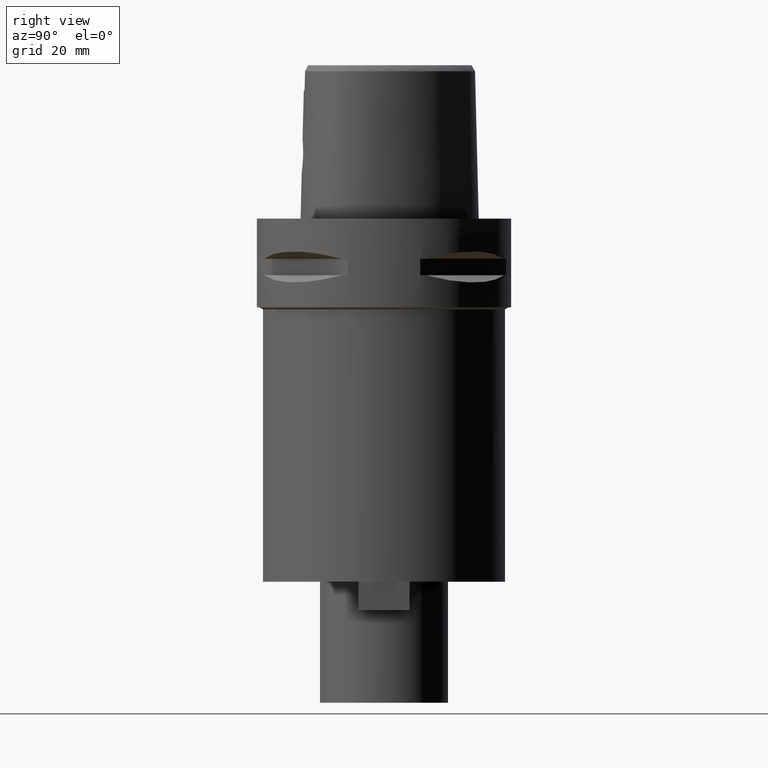
[diagram: clean part render]
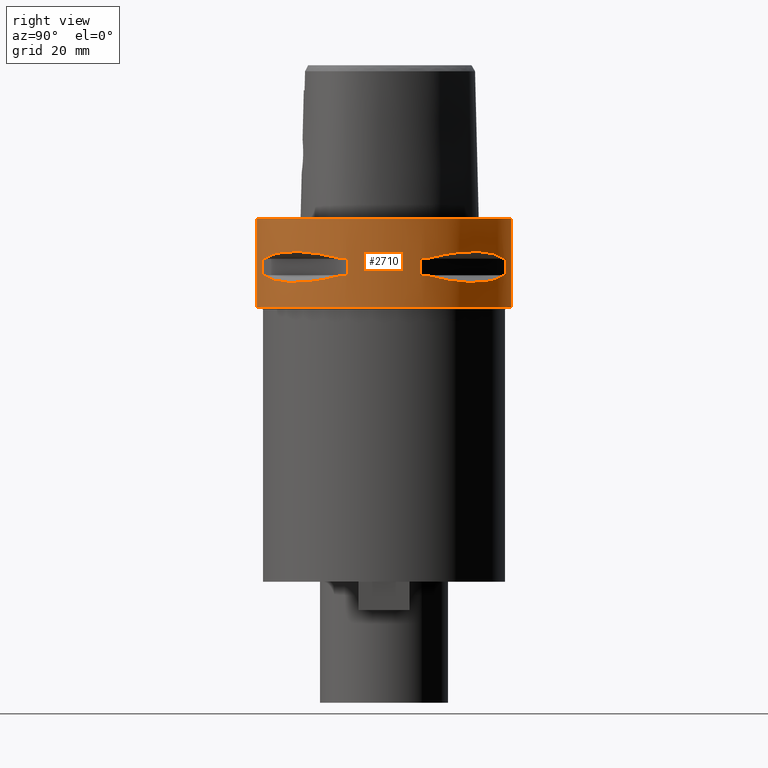
[diagram: same view with one face highlighted and labeled with its STEP entity id]
A machine part, right view. The second image highlights one B-rep face of the part: STEP entity #2710.
In plain terms, the highlighted cylindrical surface (partial cylindrical patch) has radius 31.5 mm, axis along (0, 0, -1).
Its self-contained STEP definition (entity closure, byte-faithful):
#292=CARTESIAN_POINT('',(0.E0,1.298125607096E-14,0.E0));
#293=DIRECTION('',(0.E0,0.E0,-1.E0));
#294=DIRECTION('',(0.E0,1.E0,0.E0));
#295=AXIS2_PLACEMENT_3D('',#292,#293,#294);
#384=DIRECTION('',(0.E0,0.E0,-1.E0));
#385=VECTOR('',#384,2.2E1);
#386=CARTESIAN_POINT('',(0.E0,-3.15E1,0.E0));
#387=LINE('',#386,#385);
#463=DIRECTION('',(0.E0,0.E0,-1.E0));
#464=VECTOR('',#463,2.2E1);
#465=CARTESIAN_POINT('',(0.E0,3.15E1,0.E0));
#466=LINE('',#465,#464);
#470=CARTESIAN_POINT('',(2.971690375018E1,-1.044775724750E1,-9.949999999999E0));
#471=CARTESIAN_POINT('',(2.888151197365E1,-1.282388988809E1,-9.320995176198E0));
#472=CARTESIAN_POINT('',(2.674739463903E1,-1.711282138769E1,-8.441295977074E0));
#473=CARTESIAN_POINT('',(2.244574140438E1,-2.244574140438E1,-8.020283076294E0));
#474=CARTESIAN_POINT('',(1.711282138769E1,-2.674739463903E1,-8.441295977074E0));
#475=CARTESIAN_POINT('',(1.282388988809E1,-2.888151197365E1,-9.320995176198E0));
#476=CARTESIAN_POINT('',(1.044775724750E1,-2.971690375018E1,-9.949999999999E0));
#481=DIRECTION('',(0.E0,0.E0,-1.E0));
#482=VECTOR('',#481,4.1E0);
#483=CARTESIAN_POINT('',(8.981198972018E0,-3.019251670572E1,-9.95E0));
#484=LINE('',#483,#482);
#488=CARTESIAN_POINT('',(1.044775724750E1,-2.971690375018E1,-1.405E1));
#489=CARTESIAN_POINT('',(1.282388988809E1,-2.888151197365E1,-1.467900482380E1));
#490=CARTESIAN_POINT('',(1.711282138769E1,-2.674739463903E1,-1.555870402292E1));
#491=CARTESIAN_POINT('',(2.244574140438E1,-2.244574140438E1,-1.597971692370E1));
#492=CARTESIAN_POINT('',(2.674739463903E1,-1.711282138769E1,-1.555870402292E1));
#493=CARTESIAN_POINT('',(2.888151197365E1,-1.282388988809E1,-1.467900482380E1));
#494=CARTESIAN_POINT('',(2.971690375018E1,-1.044775724750E1,-1.405E1));
#499=DIRECTION('',(0.E0,0.E0,1.E0));
#500=VECTOR('',#499,4.1E0);
#501=CARTESIAN_POINT('',(3.019251670572E1,-8.981198972018E0,-1.405E1));
#502=LINE('',#501,#500);
#506=CARTESIAN_POINT('',(1.044775724750E1,2.971690375018E1,-9.949999999999E0));
#507=CARTESIAN_POINT('',(1.282388988809E1,2.888151197365E1,-9.320995176198E0));
#508=CARTESIAN_POINT('',(1.711282138769E1,2.674739463903E1,-8.441295977074E0));
#509=CARTESIAN_POINT('',(2.244574140438E1,2.244574140438E1,-8.020283076294E0));
#510=CARTESIAN_POINT('',(2.674739463903E1,1.711282138769E1,-8.441295977074E0));
#511=CARTESIAN_POINT('',(2.888151197365E1,1.282388988809E1,-9.320995176198E0));
#512=CARTESIAN_POINT('',(2.971690375018E1,1.044775724750E1,-9.949999999999E0));
#517=DIRECTION('',(0.E0,0.E0,-1.E0));
#518=VECTOR('',#517,4.1E0);
#519=CARTESIAN_POINT('',(3.019251670572E1,8.981198972018E0,-9.95E0));
#520=LINE('',#519,#518);
#524=CARTESIAN_POINT('',(2.971690375018E1,1.044775724750E1,-1.405E1));
#525=CARTESIAN_POINT('',(2.888151197365E1,1.282388988809E1,-1.467900482380E1));
#526=CARTESIAN_POINT('',(2.674739463903E1,1.711282138769E1,-1.555870402292E1));
#527=CARTESIAN_POINT('',(2.244574140438E1,2.244574140438E1,-1.597971692370E1));
#528=CARTESIAN_POINT('',(1.711282138769E1,2.674739463903E1,-1.555870402292E1));
#529=CARTESIAN_POINT('',(1.282388988809E1,2.888151197365E1,-1.467900482380E1));
#530=CARTESIAN_POINT('',(1.044775724750E1,2.971690375018E1,-1.405E1));
#535=DIRECTION('',(0.E0,0.E0,1.E0));
#536=VECTOR('',#535,4.1E0);
#537=CARTESIAN_POINT('',(8.981198972018E0,3.019251670572E1,-1.405E1));
#538=LINE('',#537,#536);
#542=CARTESIAN_POINT('',(0.E0,1.298125607096E-14,-2.2E1));
#543=DIRECTION('',(0.E0,0.E0,1.E0));
#544=DIRECTION('',(0.E0,-1.E0,0.E0));
#545=AXIS2_PLACEMENT_3D('',#542,#543,#544);
#1466=CARTESIAN_POINT('',(0.E0,1.298125607096E-14,-9.95E0));
#1467=DIRECTION('',(0.E0,0.E0,1.E0));
#1468=DIRECTION('',(9.433937698469E-1,-3.316748332541E-1,0.E0));
#1469=AXIS2_PLACEMENT_3D('',#1466,#1467,#1468);
#1474=CARTESIAN_POINT('',(0.E0,1.298125607096E-14,-9.95E0));
#1475=DIRECTION('',(0.E0,0.E0,1.E0));
#1476=DIRECTION('',(2.851174276832E-1,-9.584925938323E-1,0.E0));
#1477=AXIS2_PLACEMENT_3D('',#1474,#1475,#1476);
#1496=CARTESIAN_POINT('',(0.E0,1.298125607096E-14,-1.405E1));
#1497=DIRECTION('',(0.E0,0.E0,-1.E0));
#1498=DIRECTION('',(9.584925938323E-1,-2.851174276832E-1,0.E0));
#1499=AXIS2_PLACEMENT_3D('',#1496,#1497,#1498);
#1504=CARTESIAN_POINT('',(0.E0,1.298125607096E-14,-1.405E1));
#1505=DIRECTION('',(0.E0,0.E0,-1.E0));
#1506=DIRECTION('',(3.316748332541E-1,-9.433937698469E-1,0.E0));
#1507=AXIS2_PLACEMENT_3D('',#1504,#1505,#1506);
#1526=CARTESIAN_POINT('',(0.E0,1.298125607096E-14,-9.95E0));
#1527=DIRECTION('',(0.E0,0.E0,1.E0));
#1528=DIRECTION('',(3.316748332541E-1,9.433937698469E-1,0.E0));
#1529=AXIS2_PLACEMENT_3D('',#1526,#1527,#1528);
#1534=CARTESIAN_POINT('',(0.E0,1.298125607096E-14,-9.95E0));
#1535=DIRECTION('',(0.E0,0.E0,1.E0));
#1536=DIRECTION('',(9.584925938323E-1,2.851174276832E-1,0.E0));
#1537=AXIS2_PLACEMENT_3D('',#1534,#1535,#1536);
#1556=CARTESIAN_POINT('',(0.E0,1.298125607096E-14,-1.405E1));
#1557=DIRECTION('',(0.E0,0.E0,-1.E0));
#1558=DIRECTION('',(2.851174276832E-1,9.584925938323E-1,0.E0));
#1559=AXIS2_PLACEMENT_3D('',#1556,#1557,#1558);
#1564=CARTESIAN_POINT('',(0.E0,1.298125607096E-14,-1.405E1));
#1565=DIRECTION('',(0.E0,0.E0,-1.E0));
#1566=DIRECTION('',(9.433937698469E-1,3.316748332541E-1,0.E0));
#1567=AXIS2_PLACEMENT_3D('',#1564,#1565,#1566);
#1732=CARTESIAN_POINT('',(0.E0,-3.15E1,0.E0));
#1733=CARTESIAN_POINT('',(0.E0,3.15E1,0.E0));
#1734=VERTEX_POINT('',#1732);
#1735=VERTEX_POINT('',#1733);
#1736=CARTESIAN_POINT('',(0.E0,3.15E1,-2.2E1));
#1737=VERTEX_POINT('',#1736);
#1738=CARTESIAN_POINT('',(0.E0,-3.15E1,-2.2E1));
#1739=VERTEX_POINT('',#1738);
#1766=VERTEX_POINT('',#470);
#1767=VERTEX_POINT('',#476);
#1768=CARTESIAN_POINT('',(8.981198972020E0,-3.019251670572E1,-9.95E0));
#1769=VERTEX_POINT('',#1768);
#1770=CARTESIAN_POINT('',(8.981198972018E0,-3.019251670572E1,-1.405E1));
#1771=VERTEX_POINT('',#1770);
#1772=CARTESIAN_POINT('',(1.044775724750E1,-2.971690375018E1,-1.405E1));
#1773=VERTEX_POINT('',#1772);
#1774=VERTEX_POINT('',#494);
#1775=CARTESIAN_POINT('',(3.019251670572E1,-8.981198972020E0,-1.405E1));
#1776=VERTEX_POINT('',#1775);
#1777=CARTESIAN_POINT('',(3.019251670572E1,-8.981198972018E0,-9.95E0));
#1778=VERTEX_POINT('',#1777);
#1779=VERTEX_POINT('',#506);
#1780=VERTEX_POINT('',#512);
#1781=CARTESIAN_POINT('',(3.019251670572E1,8.981198972020E0,-9.95E0));
#1782=VERTEX_POINT('',#1781);
#1783=CARTESIAN_POINT('',(3.019251670572E1,8.981198972018E0,-1.405E1));
#1784=VERTEX_POINT('',#1783);
#1785=CARTESIAN_POINT('',(2.971690375018E1,1.044775724750E1,-1.405E1));
#1786=VERTEX_POINT('',#1785);
#1787=VERTEX_POINT('',#530);
#1788=CARTESIAN_POINT('',(8.981198972020E0,3.019251670572E1,-1.405E1));
#1789=VERTEX_POINT('',#1788);
#1790=CARTESIAN_POINT('',(8.981198972018E0,3.019251670572E1,-9.95E0));
#1791=VERTEX_POINT('',#1790);
#2662=CARTESIAN_POINT('',(0.E0,1.298125607096E-14,6.E0));
#2663=DIRECTION('',(0.E0,0.E0,-1.E0));
#2664=DIRECTION('',(0.E0,-1.E0,0.E0));
#2665=AXIS2_PLACEMENT_3D('',#2662,#2663,#2664);
#2666=CYLINDRICAL_SURFACE('',#2665,3.15E1);
#2667=ORIENTED_EDGE('',*,*,#2616,.T.);
#2669=ORIENTED_EDGE('',*,*,#2668,.F.);
#2670=ORIENTED_EDGE('',*,*,#2619,.F.);
#2671=ORIENTED_EDGE('',*,*,#2601,.F.);
#2672=EDGE_LOOP('',(#2667,#2669,#2670,#2671));
#2673=FACE_OUTER_BOUND('',#2672,.F.);
#2675=ORIENTED_EDGE('',*,*,#2674,.T.);
#2677=ORIENTED_EDGE('',*,*,#2676,.F.);
#2679=ORIENTED_EDGE('',*,*,#2678,.T.);
#2681=ORIENTED_EDGE('',*,*,#2680,.F.);
#2683=ORIENTED_EDGE('',*,*,#2682,.T.);
#2685=ORIENTED_EDGE('',*,*,#2684,.F.);
#2687=ORIENTED_EDGE('',*,*,#2686,.T.);
#2689=ORIENTED_EDGE('',*,*,#2688,.F.);
#2690=EDGE_LOOP('',(#2675,#2677,#2679,#2681,#2683,#2685,#2687,#2689));
#2691=FACE_BOUND('',#2690,.F.);
#2693=ORIENTED_EDGE('',*,*,#2692,.T.);
#2695=ORIENTED_EDGE('',*,*,#2694,.F.);
#2697=ORIENTED_EDGE('',*,*,#2696,.T.);
#2699=ORIENTED_EDGE('',*,*,#2698,.F.);
#2701=ORIENTED_EDGE('',*,*,#2700,.T.);
#2703=ORIENTED_EDGE('',*,*,#2702,.F.);
#2705=ORIENTED_EDGE('',*,*,#2704,.T.);
#2707=ORIENTED_EDGE('',*,*,#2706,.F.);
#2708=EDGE_LOOP('',(#2693,#2695,#2697,#2699,#2701,#2703,#2705,#2707));
#2709=FACE_BOUND('',#2708,.F.);
#296=CIRCLE('',#295,3.15E1);
#477=B_SPLINE_CURVE_WITH_KNOTS('',3,(#470,#471,#472,#473,#474,#475,#476),
.UNSPECIFIED.,.F.,.F.,(4,1,1,1,4),(0.E0,2.5E-1,5.E-1,7.5E-1,1.E0),
.UNSPECIFIED.);
#495=B_SPLINE_CURVE_WITH_KNOTS('',3,(#488,#489,#490,#491,#492,#493,#494),
.UNSPECIFIED.,.F.,.F.,(4,1,1,1,4),(0.E0,2.5E-1,5.E-1,7.5E-1,1.E0),
.UNSPECIFIED.);
#513=B_SPLINE_CURVE_WITH_KNOTS('',3,(#506,#507,#508,#509,#510,#511,#512),
.UNSPECIFIED.,.F.,.F.,(4,1,1,1,4),(0.E0,2.5E-1,5.E-1,7.5E-1,1.E0),
.UNSPECIFIED.);
#531=B_SPLINE_CURVE_WITH_KNOTS('',3,(#524,#525,#526,#527,#528,#529,#530),
.UNSPECIFIED.,.F.,.F.,(4,1,1,1,4),(0.E0,2.5E-1,5.E-1,7.5E-1,1.E0),
.UNSPECIFIED.);
#546=CIRCLE('',#545,3.15E1);
#1470=CIRCLE('',#1469,3.15E1);
#1478=CIRCLE('',#1477,3.15E1);
#1500=CIRCLE('',#1499,3.15E1);
#1508=CIRCLE('',#1507,3.15E1);
#1530=CIRCLE('',#1529,3.15E1);
#1538=CIRCLE('',#1537,3.15E1);
#1560=CIRCLE('',#1559,3.15E1);
#1568=CIRCLE('',#1567,3.15E1);
#2601=EDGE_CURVE('',#1735,#1734,#296,.T.);
#2616=EDGE_CURVE('',#1735,#1737,#466,.T.);
#2619=EDGE_CURVE('',#1734,#1739,#387,.T.);
#2668=EDGE_CURVE('',#1739,#1737,#546,.T.);
#2674=EDGE_CURVE('',#1766,#1767,#477,.T.);
#2676=EDGE_CURVE('',#1769,#1767,#1478,.T.);
#2678=EDGE_CURVE('',#1769,#1771,#484,.T.);
#2680=EDGE_CURVE('',#1773,#1771,#1508,.T.);
#2682=EDGE_CURVE('',#1773,#1774,#495,.T.);
#2684=EDGE_CURVE('',#1776,#1774,#1500,.T.);
#2686=EDGE_CURVE('',#1776,#1778,#502,.T.);
#2688=EDGE_CURVE('',#1766,#1778,#1470,.T.);
#2692=EDGE_CURVE('',#1779,#1780,#513,.T.);
#2694=EDGE_CURVE('',#1782,#1780,#1538,.T.);
#2696=EDGE_CURVE('',#1782,#1784,#520,.T.);
#2698=EDGE_CURVE('',#1786,#1784,#1568,.T.);
#2700=EDGE_CURVE('',#1786,#1787,#531,.T.);
#2702=EDGE_CURVE('',#1789,#1787,#1560,.T.);
#2704=EDGE_CURVE('',#1789,#1791,#538,.T.);
#2706=EDGE_CURVE('',#1779,#1791,#1530,.T.);
#2710=ADVANCED_FACE('',(#2673,#2691,#2709),#2666,.T.);